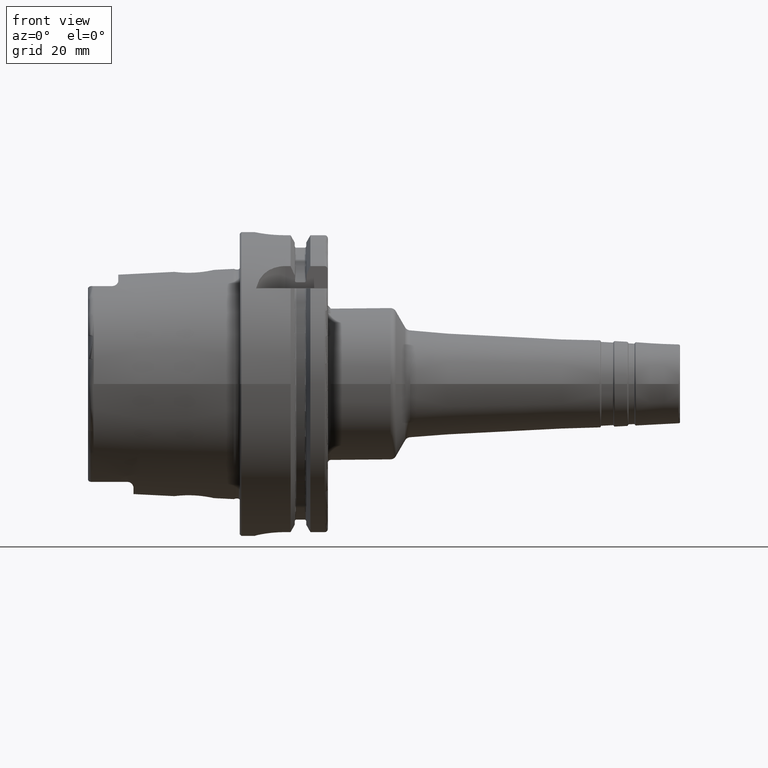
[diagram: clean part render]
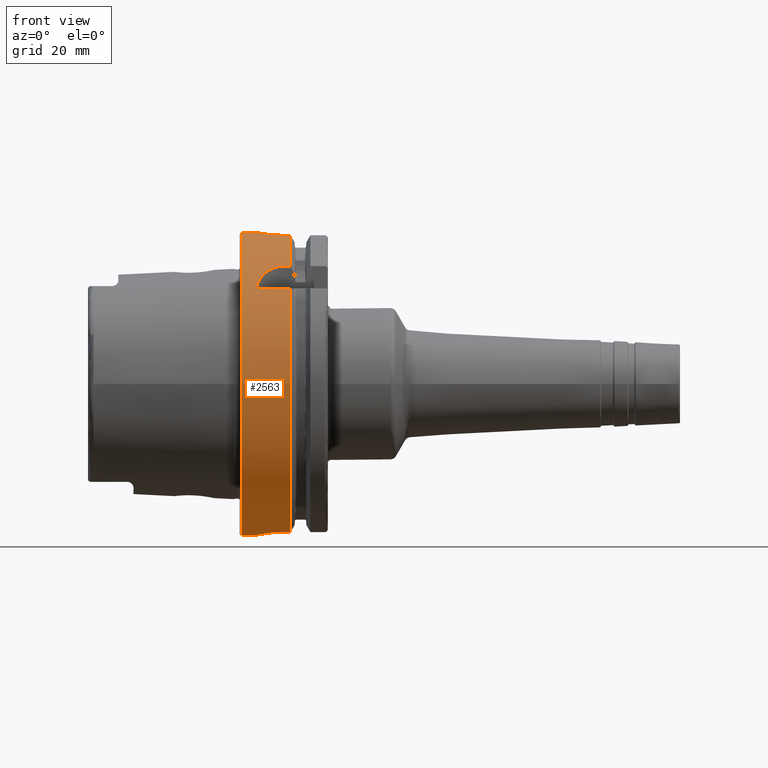
[diagram: same view with one face highlighted and labeled with its STEP entity id]
A machine part, front view. The second image highlights one B-rep face of the part: STEP entity #2563.
In plain terms, the highlighted cylindrical surface (bore or boss wall) has radius 50 mm, axis along (1, 0, 0).
Its self-contained STEP definition (entity closure, byte-faithful):
#57=B_SPLINE_CURVE_WITH_KNOTS('',3,(#4897,#4898,#4899,#4900,#4901,#4902,
#4903,#4904,#4905,#4906,#4907,#4908,#4909,#4910,#4911,#4912,#4913,#4914,
#4915,#4916,#4917,#4918,#4919,#4920,#4921,#4922),.UNSPECIFIED.,.F.,.F.,
(4,2,2,2,2,2,2,2,2,2,2,2,4),(0.,0.188478911015149,0.376957822030298,0.565436091508923,
0.753914360987547,0.942392630466172,1.1308708999448,1.31934981095995,1.50782872197509,
1.69630763299024,1.88478654400539,2.07326481348402,2.26174308296264),
 .UNSPECIFIED.);
#58=B_SPLINE_CURVE_WITH_KNOTS('',3,(#4923,#4924,#4925,#4926,#4927,#4928,
#4929,#4930,#4931,#4932),.UNSPECIFIED.,.F.,.F.,(4,2,2,2,4),(2.26174308296264,
2.45022135244127,2.63869962191989,2.82717853293504,3.01565744395019),
 .UNSPECIFIED.);
#59=B_SPLINE_CURVE_WITH_KNOTS('',3,(#4943,#4944,#4945,#4946,#4947,#4948,
#4949,#4950,#4951,#4952,#4953,#4954),.UNSPECIFIED.,.F.,.F.,(4,2,2,2,2,4),
(1.13213255574021,1.59216410027009,1.87572541272146,2.15928672517283,2.38471683342296,
2.61014694167308),.UNSPECIFIED.);
#66=B_SPLINE_CURVE_WITH_KNOTS('',3,(#5067,#5068,#5069,#5070,#5071,#5072,
#5073,#5074,#5075,#5076,#5077,#5078,#5079,#5080,#5081,#5082,#5083,#5084),
 .UNSPECIFIED.,.F.,.F.,(4,2,2,2,2,2,2,2,4),(0.,0.377795255890194,0.755590511780389,
1.13336459804459,1.51113868430879,1.88891277057299,2.26668685683718,2.64448211272738,
3.02227736861757),.UNSPECIFIED.);
#67=B_SPLINE_CURVE_WITH_KNOTS('',3,(#5092,#5093,#5094,#5095,#5096,#5097,
#5098,#5099,#5100,#5101),.UNSPECIFIED.,.F.,.F.,(4,2,2,2,4),(0.,0.377863193874929,
0.755726387749858,1.13417752669663,1.51262866564341),.UNSPECIFIED.);
#68=B_SPLINE_CURVE_WITH_KNOTS('',3,(#5105,#5106,#5107,#5108,#5109,#5110,
#5111,#5112,#5113,#5114),.UNSPECIFIED.,.F.,.F.,(4,2,2,2,4),(1.50996806152532,
1.8884192004721,2.26687033941887,2.6447335332938,3.02259672716873),
 .UNSPECIFIED.);
#123=FACE_BOUND('',#627,.T.);
#222=LINE('',#4960,#336);
#228=LINE('',#5012,#342);
#233=LINE('',#5065,#347);
#234=LINE('',#5086,#348);
#235=LINE('',#5090,#349);
#236=LINE('',#5116,#350);
#237=LINE('',#5120,#351);
#336=VECTOR('',#3476,10.);
#342=VECTOR('',#3484,10.);
#347=VECTOR('',#3493,10.);
#348=VECTOR('',#3494,10.);
#349=VECTOR('',#3497,10.);
#350=VECTOR('',#3500,10.);
#351=VECTOR('',#3503,50.);
#408=CYLINDRICAL_SURFACE('',#2857,50.);
#486=FACE_OUTER_BOUND('',#626,.T.);
#626=EDGE_LOOP('',(#2053,#2054,#2055,#2056,#2057,#2058,#2059,#2060,#2061,
#2062,#2063,#2064,#2065,#2066,#2067,#2068,#2069,#2070,#2071));
#627=EDGE_LOOP('',(#2072,#2073));
#842=CIRCLE('',#2858,50.);
#843=CIRCLE('',#2859,50.);
#844=CIRCLE('',#2860,50.);
#845=CIRCLE('',#2861,50.);
#846=CIRCLE('',#2862,50.);
#847=CIRCLE('',#2863,50.);
#848=CIRCLE('',#2864,50.);
#1105=VERTEX_POINT('',#4894);
#1106=VERTEX_POINT('',#4896);
#1109=VERTEX_POINT('',#4941);
#1110=VERTEX_POINT('',#4942);
#1112=VERTEX_POINT('',#4959);
#1121=VERTEX_POINT('',#5011);
#1130=VERTEX_POINT('',#5062);
#1131=VERTEX_POINT('',#5064);
#1132=VERTEX_POINT('',#5066);
#1133=VERTEX_POINT('',#5085);
#1134=VERTEX_POINT('',#5087);
#1135=VERTEX_POINT('',#5089);
#1136=VERTEX_POINT('',#5091);
#1137=VERTEX_POINT('',#5102);
#1138=VERTEX_POINT('',#5104);
#1139=VERTEX_POINT('',#5115);
#1140=VERTEX_POINT('',#5117);
#1141=VERTEX_POINT('',#5119);
#1142=VERTEX_POINT('',#5121);
#1444=EDGE_CURVE('',#1106,#1105,#57,.T.);
#1445=EDGE_CURVE('',#1105,#1106,#58,.T.);
#1449=EDGE_CURVE('',#1109,#1110,#59,.T.);
#1452=EDGE_CURVE('',#1110,#1112,#222,.T.);
#1463=EDGE_CURVE('',#1121,#1109,#228,.T.);
#1473=EDGE_CURVE('',#1130,#1112,#842,.T.);
#1474=EDGE_CURVE('',#1130,#1131,#233,.T.);
#1475=EDGE_CURVE('',#1131,#1132,#66,.T.);
#1476=EDGE_CURVE('',#1132,#1133,#234,.T.);
#1477=EDGE_CURVE('',#1134,#1133,#843,.T.);
#1478=EDGE_CURVE('',#1134,#1135,#235,.T.);
#1479=EDGE_CURVE('',#1135,#1136,#67,.T.);
#1480=EDGE_CURVE('',#1136,#1137,#844,.T.);
#1481=EDGE_CURVE('',#1137,#1138,#68,.T.);
#1482=EDGE_CURVE('',#1138,#1139,#236,.T.);
#1483=EDGE_CURVE('',#1140,#1139,#845,.T.);
#1484=EDGE_CURVE('',#1140,#1141,#237,.T.);
#1485=EDGE_CURVE('',#1141,#1142,#846,.T.);
#1486=EDGE_CURVE('',#1142,#1141,#847,.T.);
#1487=EDGE_CURVE('',#1121,#1140,#848,.T.);
#2053=ORIENTED_EDGE('',*,*,#1463,.T.);
#2054=ORIENTED_EDGE('',*,*,#1449,.T.);
#2055=ORIENTED_EDGE('',*,*,#1452,.T.);
#2056=ORIENTED_EDGE('',*,*,#1473,.F.);
#2057=ORIENTED_EDGE('',*,*,#1474,.T.);
#2058=ORIENTED_EDGE('',*,*,#1475,.T.);
#2059=ORIENTED_EDGE('',*,*,#1476,.T.);
#2060=ORIENTED_EDGE('',*,*,#1477,.F.);
#2061=ORIENTED_EDGE('',*,*,#1478,.T.);
#2062=ORIENTED_EDGE('',*,*,#1479,.T.);
#2063=ORIENTED_EDGE('',*,*,#1480,.T.);
#2064=ORIENTED_EDGE('',*,*,#1481,.T.);
#2065=ORIENTED_EDGE('',*,*,#1482,.T.);
#2066=ORIENTED_EDGE('',*,*,#1483,.F.);
#2067=ORIENTED_EDGE('',*,*,#1484,.T.);
#2068=ORIENTED_EDGE('',*,*,#1485,.T.);
#2069=ORIENTED_EDGE('',*,*,#1486,.T.);
#2070=ORIENTED_EDGE('',*,*,#1484,.F.);
#2071=ORIENTED_EDGE('',*,*,#1487,.F.);
#2072=ORIENTED_EDGE('',*,*,#1444,.T.);
#2073=ORIENTED_EDGE('',*,*,#1445,.T.);
#2563=ADVANCED_FACE('',(#486,#123),#408,.T.);
#2857=AXIS2_PLACEMENT_3D('',#5061,#3489,#3490);
#2858=AXIS2_PLACEMENT_3D('',#5063,#3491,#3492);
#2859=AXIS2_PLACEMENT_3D('',#5088,#3495,#3496);
#2860=AXIS2_PLACEMENT_3D('',#5103,#3498,#3499);
#2861=AXIS2_PLACEMENT_3D('',#5118,#3501,#3502);
#2862=AXIS2_PLACEMENT_3D('',#5122,#3504,#3505);
#2863=AXIS2_PLACEMENT_3D('',#5123,#3506,#3507);
#2864=AXIS2_PLACEMENT_3D('',#5124,#3508,#3509);
#3476=DIRECTION('',(1.,0.,0.));
#3484=DIRECTION('',(-1.,0.,0.));
#3489=DIRECTION('center_axis',(1.,0.,0.));
#3490=DIRECTION('ref_axis',(0.,1.,0.));
#3491=DIRECTION('center_axis',(1.,0.,0.));
#3492=DIRECTION('ref_axis',(0.,0.,-1.));
#3493=DIRECTION('',(-1.,0.,0.));
#3494=DIRECTION('',(1.,0.,0.));
#3495=DIRECTION('center_axis',(1.,0.,0.));
#3496=DIRECTION('ref_axis',(0.,0.,-1.));
#3497=DIRECTION('',(-1.,0.,0.));
#3498=DIRECTION('center_axis',(-1.,0.,0.));
#3499=DIRECTION('ref_axis',(0.,1.,0.));
#3500=DIRECTION('',(1.,0.,0.));
#3501=DIRECTION('center_axis',(1.,0.,0.));
#3502=DIRECTION('ref_axis',(0.,0.,-1.));
#3503=DIRECTION('',(-1.,0.,0.));
#3504=DIRECTION('center_axis',(1.,0.,0.));
#3505=DIRECTION('ref_axis',(0.,0.,-1.));
#3506=DIRECTION('center_axis',(1.,0.,0.));
#3507=DIRECTION('ref_axis',(0.,0.,-1.));
#3508=DIRECTION('center_axis',(1.,0.,0.));
#3509=DIRECTION('ref_axis',(0.,0.,-1.));
#4894=CARTESIAN_POINT('',(12.,50.,-6.12323399573677E-16));
#4896=CARTESIAN_POINT('',(6.99999999999999,49.749371855331,5.));
#4897=CARTESIAN_POINT('Ctrl Pts',(6.99999999999999,49.749371855331,5.));
#4898=CARTESIAN_POINT('Ctrl Pts',(6.37173696328283,49.749371855331,5.));
#4899=CARTESIAN_POINT('Ctrl Pts',(5.70188570880885,49.7624993987098,4.87435544587055));
#4900=CARTESIAN_POINT('Ctrl Pts',(4.4701142477173,49.8098541153698,4.36395693611591));
#4901=CARTESIAN_POINT('Ctrl Pts',(3.90815809537484,49.8433908660961,3.97922590724033));
#4902=CARTESIAN_POINT('Ctrl Pts',(3.02077560297968,49.9062957431473,3.09184341484517));
#4903=CARTESIAN_POINT('Ctrl Pts',(2.63604339567929,49.9397591808605,2.52988660036719));
#4904=CARTESIAN_POINT('Ctrl Pts',(2.12564400622109,49.9869460568296,1.29811292154946));
#4905=CARTESIAN_POINT('Ctrl Pts',(1.99999999999999,50.,0.628260898262081));
#4906=CARTESIAN_POINT('Ctrl Pts',(1.99999999999999,50.,-0.628260898262082));
#4907=CARTESIAN_POINT('Ctrl Pts',(2.12564400622109,49.9869460568296,-1.29811292154947));
#4908=CARTESIAN_POINT('Ctrl Pts',(2.63604339567929,49.9397591808605,-2.52988660036719));
#4909=CARTESIAN_POINT('Ctrl Pts',(3.02077560297968,49.9062957431473,-3.09184341484517));
#4910=CARTESIAN_POINT('Ctrl Pts',(3.90815809537484,49.8433908660961,-3.97922590724033));
#4911=CARTESIAN_POINT('Ctrl Pts',(4.4701142477173,49.8098541153698,-4.36395693611591));
#4912=CARTESIAN_POINT('Ctrl Pts',(5.70188570880885,49.7624993987098,-4.87435544587055));
#4913=CARTESIAN_POINT('Ctrl Pts',(6.37173696328283,49.749371855331,-5.));
#4914=CARTESIAN_POINT('Ctrl Pts',(7.62826303671716,49.749371855331,-5.));
#4915=CARTESIAN_POINT('Ctrl Pts',(8.29811429119114,49.7624993987098,-4.87435544587055));
#4916=CARTESIAN_POINT('Ctrl Pts',(9.52988575228269,49.8098541153698,-4.36395693611592));
#4917=CARTESIAN_POINT('Ctrl Pts',(10.0918419046251,49.8433908660961,-3.97922590724033));
#4918=CARTESIAN_POINT('Ctrl Pts',(10.9792243970203,49.9062957431473,-3.09184341484517));
#4919=CARTESIAN_POINT('Ctrl Pts',(11.3639566043207,49.9397591808605,-2.52988660036719));
#4920=CARTESIAN_POINT('Ctrl Pts',(11.8743559937789,49.9869460568296,-1.29811292154946));
#4921=CARTESIAN_POINT('Ctrl Pts',(12.,50.,-0.628260898262081));
#4922=CARTESIAN_POINT('Ctrl Pts',(12.,50.,-4.16333634234434E-16));
#4923=CARTESIAN_POINT('Ctrl Pts',(12.,50.,-6.93889390390723E-16));
#4924=CARTESIAN_POINT('Ctrl Pts',(12.,50.,0.62826089826208));
#4925=CARTESIAN_POINT('Ctrl Pts',(11.8743559937789,49.9869460568296,1.29811292154946));
#4926=CARTESIAN_POINT('Ctrl Pts',(11.3639566043207,49.9397591808605,2.52988660036719));
#4927=CARTESIAN_POINT('Ctrl Pts',(10.9792243970203,49.9062957431473,3.09184341484517));
#4928=CARTESIAN_POINT('Ctrl Pts',(10.0918419046251,49.8433908660961,3.97922590724033));
#4929=CARTESIAN_POINT('Ctrl Pts',(9.5298857522827,49.8098541153698,4.36395693611591));
#4930=CARTESIAN_POINT('Ctrl Pts',(8.29811429119114,49.7624993987098,4.87435544587055));
#4931=CARTESIAN_POINT('Ctrl Pts',(7.62826303671716,49.749371855331,5.));
#4932=CARTESIAN_POINT('Ctrl Pts',(6.99999999999999,49.749371855331,5.));
#4941=CARTESIAN_POINT('',(5.36310214079494,-38.8297566307078,31.5));
#4942=CARTESIAN_POINT('',(15.,-31.5,38.8297566307078));
#4943=CARTESIAN_POINT('Ctrl Pts',(5.36310214079494,-38.8297566307078,31.5));
#4944=CARTESIAN_POINT('Ctrl Pts',(5.63795050776221,-37.8378299510303,32.722738779917));
#4945=CARTESIAN_POINT('Ctrl Pts',(6.08245260240086,-36.8264130955983,33.8486741193789));
#4946=CARTESIAN_POINT('Ctrl Pts',(7.14730321206235,-35.2667182945212,35.4540138707062));
#4947=CARTESIAN_POINT('Ctrl Pts',(7.68113760815893,-34.6306580359392,36.0741351437033));
#4948=CARTESIAN_POINT('Ctrl Pts',(8.97436758466638,-33.4722127660808,37.1515365058173));
#4949=CARTESIAN_POINT('Ctrl Pts',(9.73574998094174,-32.9521170857844,37.6088911783762));
#4950=CARTESIAN_POINT('Ctrl Pts',(11.1521999725134,-32.2432973482077,38.2170233500259));
#4951=CARTESIAN_POINT('Ctrl Pts',(11.8888981504148,-31.9629772872452,38.4503075998006));
#4952=CARTESIAN_POINT('Ctrl Pts',(13.4369856471743,-31.5908755949743,38.7566077888176));
#4953=CARTESIAN_POINT('Ctrl Pts',(14.2485663058329,-31.5,38.8297566307078));
#4954=CARTESIAN_POINT('Ctrl Pts',(15.,-31.5,38.8297566307078));
#4959=CARTESIAN_POINT('',(16.7379709790786,-31.5,38.8297566307078));
#4960=CARTESIAN_POINT('',(8.61898548953931,-31.5,38.8297566307078));
#5011=CARTESIAN_POINT('',(16.7379709790786,-38.8297566307078,31.5));
#5012=CARTESIAN_POINT('',(8.61898548953931,-38.8297566307078,31.5));
#5061=CARTESIAN_POINT('Origin',(8.61898548953931,0.,0.));
#5062=CARTESIAN_POINT('',(16.7379709790786,-10.,48.9897948556636));
#5063=CARTESIAN_POINT('Origin',(16.7379709790786,0.,0.));
#5064=CARTESIAN_POINT('',(15.,-10.,48.9897948556636));
#5065=CARTESIAN_POINT('',(8.61898548953931,-10.,48.9897948556636));
#5066=CARTESIAN_POINT('',(15.,10.,48.9897948556636));
#5067=CARTESIAN_POINT('Ctrl Pts',(15.,-10.,48.9897948556636));
#5068=CARTESIAN_POINT('Ctrl Pts',(13.740682480366,-10.,48.9897948556636));
#5069=CARTESIAN_POINT('Ctrl Pts',(12.3998222283811,-9.74762796248614,49.0433876618447));
#5070=CARTESIAN_POINT('Ctrl Pts',(9.93707994969945,-8.72605417648382,49.2354150792771));
#5071=CARTESIAN_POINT('Ctrl Pts',(8.81489539818993,-7.95703102192089,49.3709085101933));
#5072=CARTESIAN_POINT('Ctrl Pts',(7.04301862271998,-6.18515424645094,49.6240337638318));
#5073=CARTESIAN_POINT('Ctrl Pts',(6.27395658455242,-5.06294861197626,49.7583347151863));
#5074=CARTESIAN_POINT('Ctrl Pts',(5.25235457764165,-2.60013306081865,49.9476188647081));
#5075=CARTESIAN_POINT('Ctrl Pts',(4.99999999999999,-1.259246954214,50.));
#5076=CARTESIAN_POINT('Ctrl Pts',(4.99999999999999,1.259246954214,50.));
#5077=CARTESIAN_POINT('Ctrl Pts',(5.25235457764165,2.60013306081865,49.9476188647081));
#5078=CARTESIAN_POINT('Ctrl Pts',(6.27395658455242,5.06294861197626,49.7583347151863));
#5079=CARTESIAN_POINT('Ctrl Pts',(7.04301862271998,6.18515424645094,49.6240337638318));
#5080=CARTESIAN_POINT('Ctrl Pts',(8.81489539818993,7.95703102192089,49.3709085101933));
#5081=CARTESIAN_POINT('Ctrl Pts',(9.93707994969945,8.72605417648382,49.2354150792771));
#5082=CARTESIAN_POINT('Ctrl Pts',(12.3998222283811,9.74762796248614,49.0433876618447));
#5083=CARTESIAN_POINT('Ctrl Pts',(13.740682480366,10.,48.9897948556636));
#5084=CARTESIAN_POINT('Ctrl Pts',(15.,10.,48.9897948556636));
#5085=CARTESIAN_POINT('',(16.7379709790786,10.,48.9897948556636));
#5086=CARTESIAN_POINT('',(8.61898548953931,10.,48.9897948556636));
#5087=CARTESIAN_POINT('',(16.7379709790786,11.,-48.7749935930288));
#5088=CARTESIAN_POINT('Origin',(16.7379709790786,0.,0.));
#5089=CARTESIAN_POINT('',(15.,11.,-48.7749935930288));
#5090=CARTESIAN_POINT('',(8.61898548953931,11.,-48.7749935930288));
#5091=CARTESIAN_POINT('',(4.99999999999999,0.999999999999997,-49.9899989998));
#5092=CARTESIAN_POINT('Ctrl Pts',(15.,11.,-48.7749935930288));
#5093=CARTESIAN_POINT('Ctrl Pts',(13.7404560204169,11.,-48.7749935930288));
#5094=CARTESIAN_POINT('Ctrl Pts',(12.3998213084084,10.7475295248871,-48.8340306344483));
#5095=CARTESIAN_POINT('Ctrl Pts',(9.9383361278342,9.72667325975831,-49.0475663096823));
#5096=CARTESIAN_POINT('Ctrl Pts',(8.81713821454868,8.95850056252305,-49.1990678796225));
#5097=CARTESIAN_POINT('Ctrl Pts',(7.04551978193545,7.18842719108522,-49.4887060645896));
#5098=CARTESIAN_POINT('Ctrl Pts',(6.27594389465425,6.06650925178,-49.6460359942126));
#5099=CARTESIAN_POINT('Ctrl Pts',(5.25307325920197,3.60309260864685,-49.8853600567865));
#5100=CARTESIAN_POINT('Ctrl Pts',(4.99999999999999,2.26125147049483,-49.9647689238702));
#5101=CARTESIAN_POINT('Ctrl Pts',(4.99999999999999,1.,-49.9899989998));
#5102=CARTESIAN_POINT('',(4.99999999999999,-1.00000000000001,-49.9899989998));
#5103=CARTESIAN_POINT('Origin',(4.99999999999999,0.,0.));
#5104=CARTESIAN_POINT('',(15.,-11.,-48.7749935930288));
#5105=CARTESIAN_POINT('Ctrl Pts',(4.99999999999999,-1.,-49.9899989998));
#5106=CARTESIAN_POINT('Ctrl Pts',(4.99999999999999,-2.26125147049483,-49.9647689238702));
#5107=CARTESIAN_POINT('Ctrl Pts',(5.25307325920197,-3.60309260864686,-49.8853600567865));
#5108=CARTESIAN_POINT('Ctrl Pts',(6.27594389465425,-6.06650925178001,-49.6460359942126));
#5109=CARTESIAN_POINT('Ctrl Pts',(7.04551978193545,-7.18842719108522,-49.4887060645896));
#5110=CARTESIAN_POINT('Ctrl Pts',(8.81713821454868,-8.95850056252306,-49.1990678796225));
#5111=CARTESIAN_POINT('Ctrl Pts',(9.9383361278342,-9.72667325975831,-49.0475663096823));
#5112=CARTESIAN_POINT('Ctrl Pts',(12.3998213084084,-10.7475295248871,-48.8340306344483));
#5113=CARTESIAN_POINT('Ctrl Pts',(13.7404560204169,-11.,-48.7749935930288));
#5114=CARTESIAN_POINT('Ctrl Pts',(15.,-11.,-48.7749935930288));
#5115=CARTESIAN_POINT('',(16.7379709790786,-11.,-48.7749935930288));
#5116=CARTESIAN_POINT('',(8.61898548953931,-11.,-48.7749935930288));
#5117=CARTESIAN_POINT('',(16.7379709790786,-50.,-6.12323399573677E-15));
#5118=CARTESIAN_POINT('Origin',(16.7379709790786,0.,0.));
#5119=CARTESIAN_POINT('',(0.499999999999999,-50.,-6.12323399573677E-15));
#5120=CARTESIAN_POINT('',(8.61898548953931,-50.,-6.12323399573677E-15));
#5121=CARTESIAN_POINT('',(0.5,50.,0.));
#5122=CARTESIAN_POINT('Origin',(0.5,0.,0.));
#5123=CARTESIAN_POINT('Origin',(0.5,0.,0.));
#5124=CARTESIAN_POINT('Origin',(16.7379709790786,0.,0.));